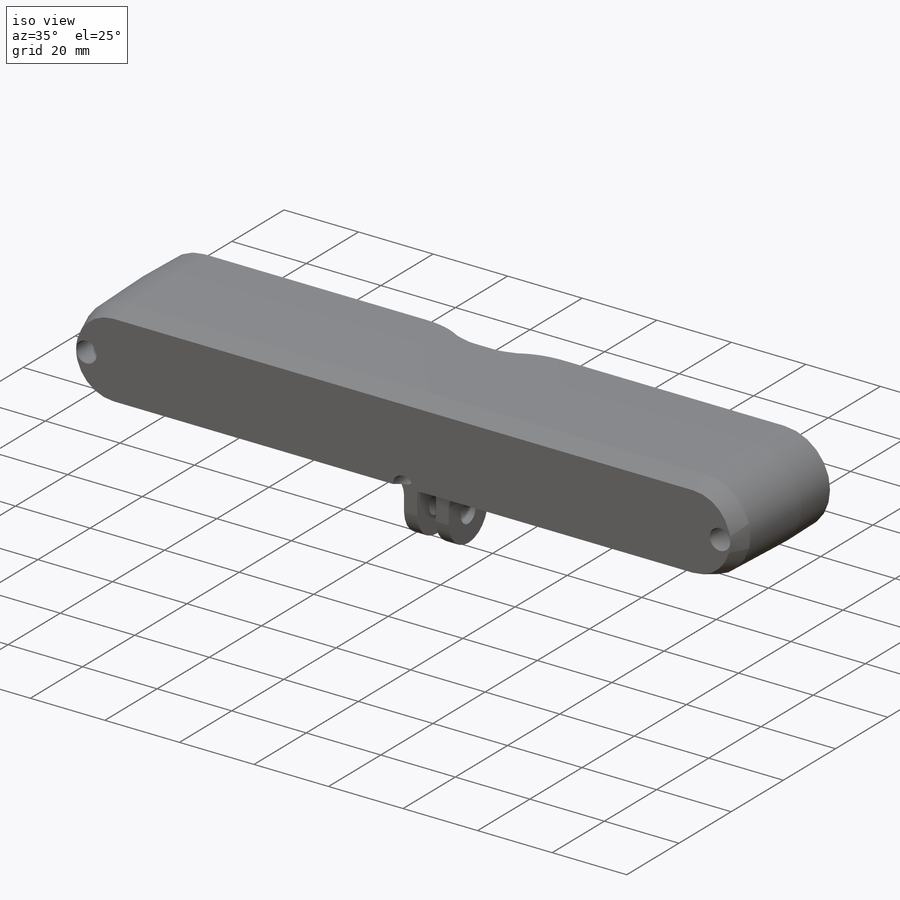
[diagram: iso view]
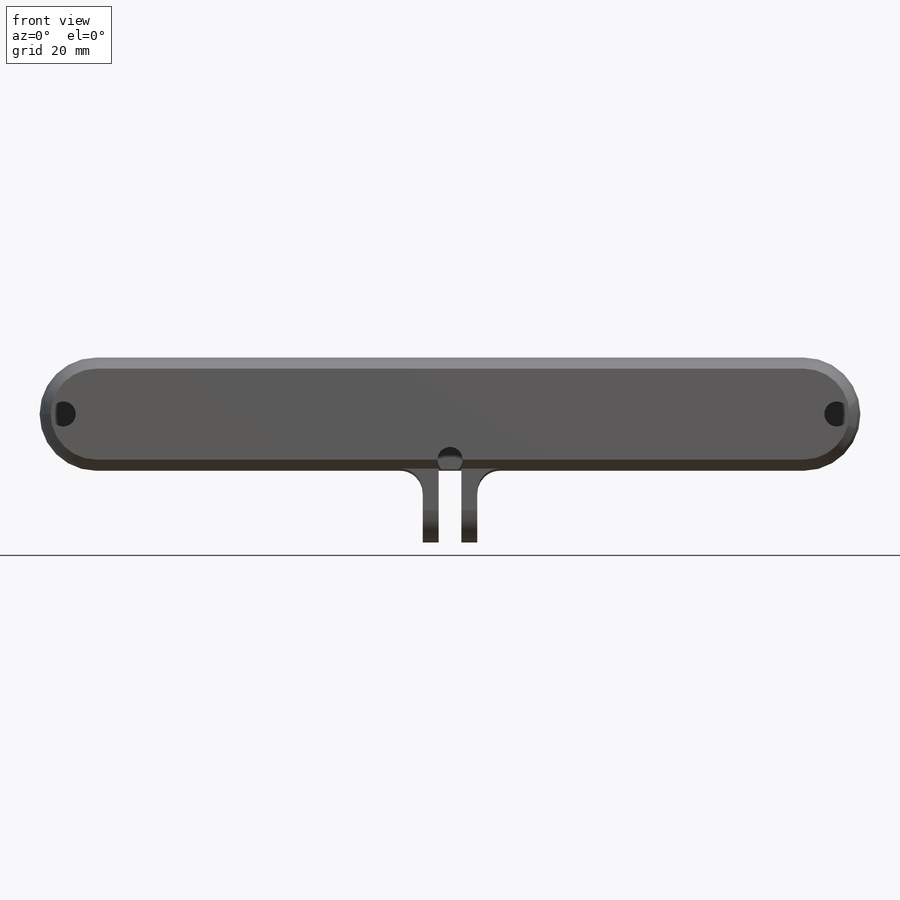
[diagram: front view]
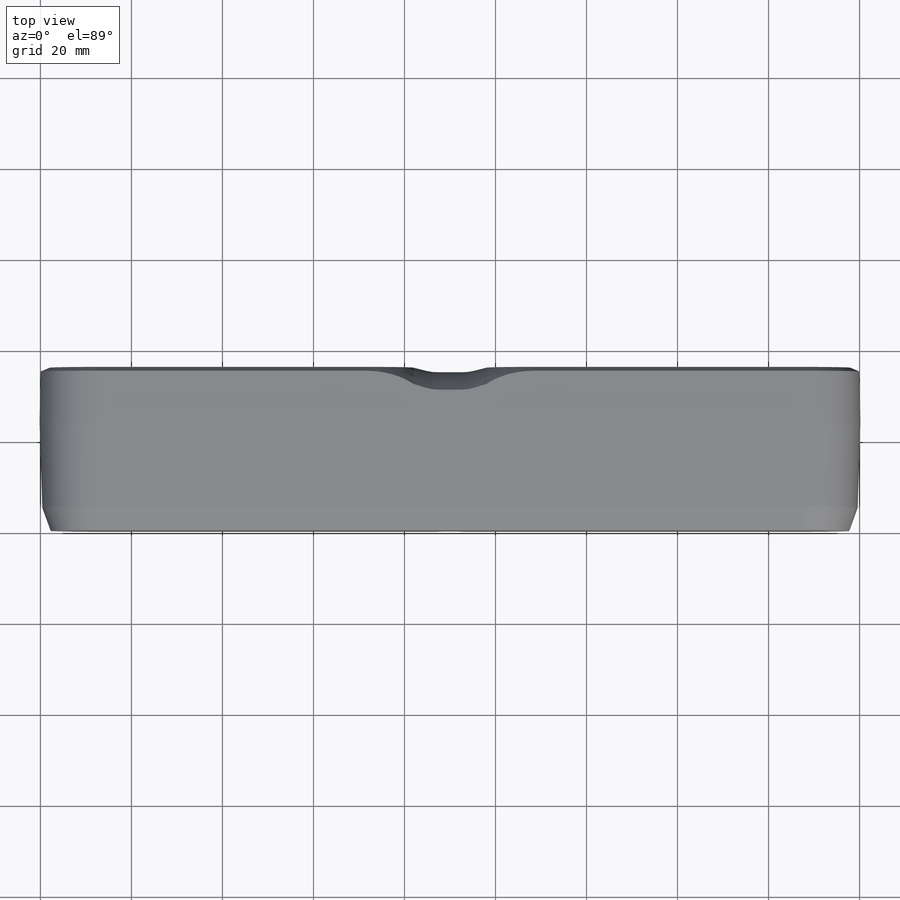
[diagram: top view]
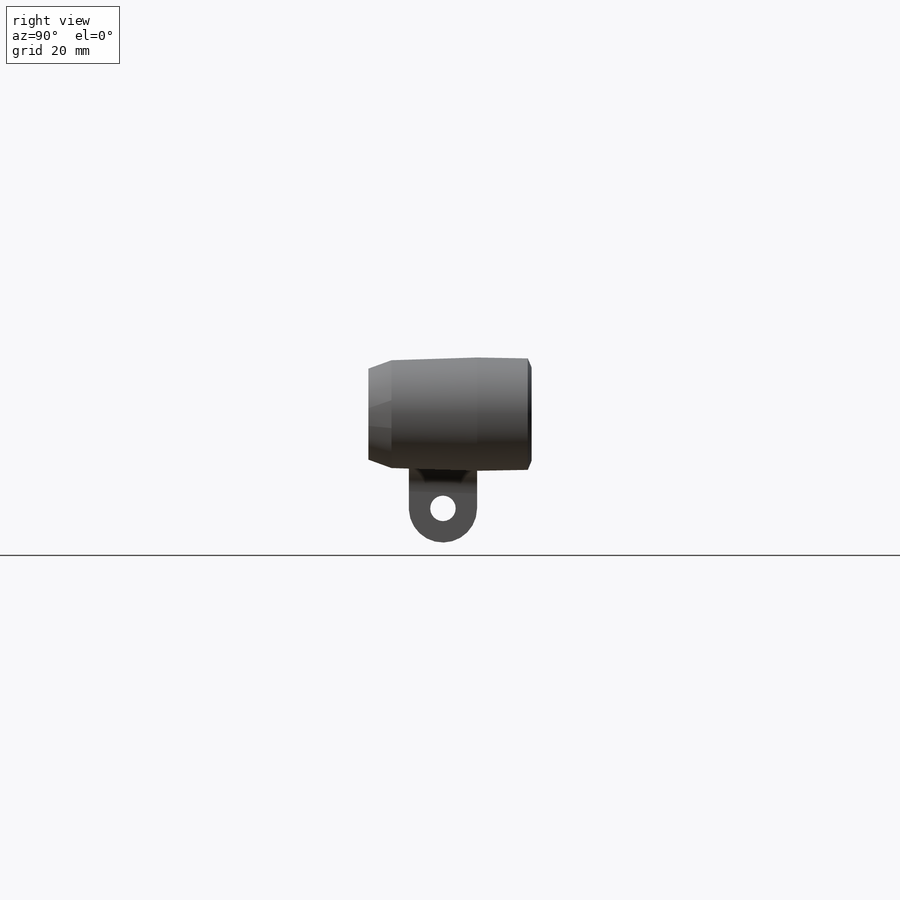
[diagram: right view]
SOLIDWORKS PART (.sldprt)
format: sldprt  version: not decoded by parser v0  size: 667,136 bytes
history: native  units: mm
features: sketch x18, plane x10, cut_extrude x7, fillet x5, chamfer x3, mirror x3, extrude x2, cut_revolve x2, material x1 (+10 scaffold rows collapsed)
feature tree (61):
  scaffold x10  (default folders/planes/origin — collapsed)
  material  "Material <sin especificar>"
  plane  "Alzado"
  plane  "Planta"
  plane  "Vista lateral"
  sketch  "Croquis1"  dims[D1=23.7mm D2=24.9mm D3=24.5mm D4=1.0mm D5=20.0mm D6=11.0mm D7=18.8mm D8=35.9mm D9=5.1mm D10=20.0mm D11=10.0mm D12=0.0mm]
  extrude  "Saliente-Extruir1"  Depth=180mm
  sketch  "Croquis2"  dims[c1.D2=9.4mm c1.D3=9.4mm c1.D12=10.35mm c1.D13=17.0mm c1.D1=18.8mm c2.D2=25.0mm c2.D4=43.2mm c2.D5=20.0mm c3.D5=270.0deg c4.D5=59.5mm c4.D6=20.7mm c4.D7=~1.881818mm c4.D8=~1.881818mm c4.D9=12.25mm c4.D10=37.0mm c4.D11=18.5mm c4.D12=36.5mm c4.D14=21.8mm c5.D10=21.8mm]
  plane  "Plano1"
  sketch  "Croquis3"
  cut_extrude  "Cortar-Extruir2"  Depth=1.5mm
  plane  "Plano2"
  sketch  "Croquis7"
  sketch  "Croquis8"
  plane  "Plano3"
  sketch  "Croquis9"  dims[D1=180.0deg]
  plane  "Plano4"
  plane  "Plano5"
  sketch  "Croquis11"  dims[D1=180.0deg]
  chamfer  "Chaflán3"  Distance=0.5mm Angle=45deg
  sketch  "Croquis12"  dims[D6=10.0mm D1=8.0mm D2=8.0mm D3=8.0mm D4=1.0mm D5=4.0mm D7=5.0mm D8=34.9mm]
  cut_extrude  "Cortar-Extruir3"  [1 undecoded]
  sketch  "Croquis2<12>"  dims[D1=0.2mm D3=45.0deg]
  plane  "Plano6"  Offset=14mm
  sketch  "Croquis13"
  cut_revolve  "Cortar-Revolución6"  Angle=90deg
  chamfer  "Chaflán6"  Distance=2mm Angle=23deg
  fillet  "Redondeo5"  Radius=20mm
  cut_extrude  "Cortar-Extruir4"  [1 undecoded]
  sketch  "Croquis2<13>"  dims[D1=1.0mm]
  chamfer  "Chaflán7"  Distance=0.2mm Angle=45deg
  sketch  "Croquis16"
  sketch  "Croquis14"  dims[D1=15.0mm D2=15.0mm D3=3.5mm D4=3.5mm D5=5.0mm D6=2.5mm]
  extrude  "Saliente-Extruir2"  Depth=17mm
  cut_revolve  "Redondeo6"  [1 undecoded]
  sketch  "Croquis17"  dims[c1.D1=15.0mm c1.D4=~2.867105mm c1.D2=7.5mm c1.D3=~10.387086mm c2.D3=~91.827968deg c3.D3=8.5mm]
  cut_extrude  "Cortar-Extruir5"  [1 undecoded]
  sketch  "Croquis18"  dims[D1=6.0mm D3=1.0mm D4=4.0mm D5=2.0mm D6=3.0mm D2=16.0mm]
  cut_extrude  "Cortar-Extruir6"  Depth=0.5mm
  cut_extrude  "Cortar-Extruir7"  [1 undecoded]
  sketch  "Croquis18<4>"  dims[D1=3.0mm]
  mirror  "Simetría1"
  fillet  "Punto4"  [1 undecoded]
  plane  "Plano7"
  fillet  "Punto5"  [1 undecoded]
  sketch  "Croquis19"  dims[D1=15.0mm D2=15.0mm D3=25.0mm D4=21.8mm]
  fillet  "Punto6"  [1 undecoded]
  fillet  "Punto7"  [1 undecoded]
  mirror  "Sistema de coordenadas2"
  mirror  "Sistema de coordenadas3"
  sketch  "Croquis20"  dims[D1=5.5mm D2=5.5mm D3=5.5mm]
  cut_extrude  "Cortar-Extruir8"  Depth=13mm
decode coverage: 23 of 40 modeling features carry decoded parameters
note: ~ marks probable driven/reference dimensions
note: 9 parameter values undecoded
summary: no parameter record found for 9 features
note: suppression state not decoded; provenance and decode notes live in map.json
